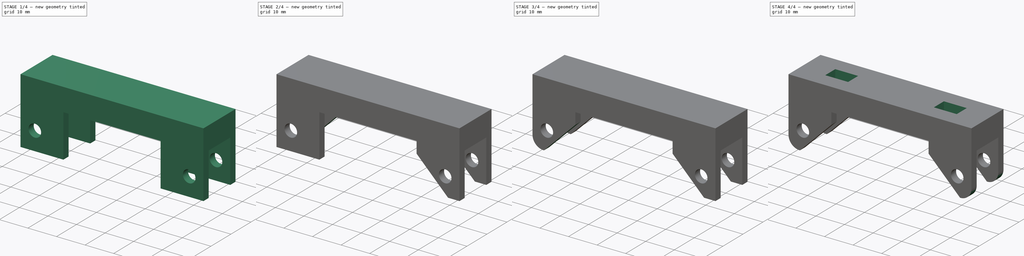
[diagram: build sequence overview — one tinted view per stage of 4, left to right]
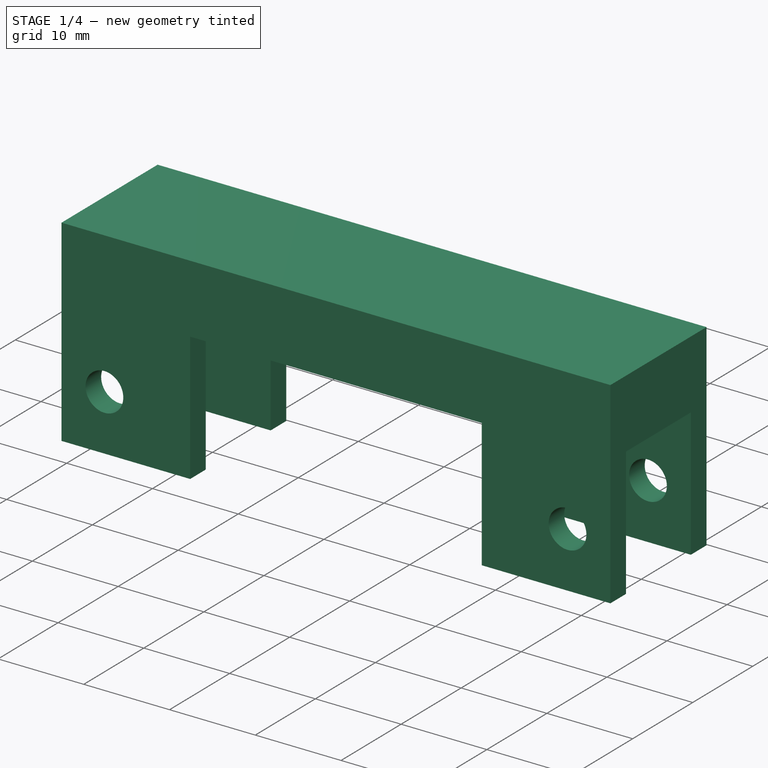
[diagram: stage 1 of 4 — iso view after this stage's code; geometry added in this stage tinted green]
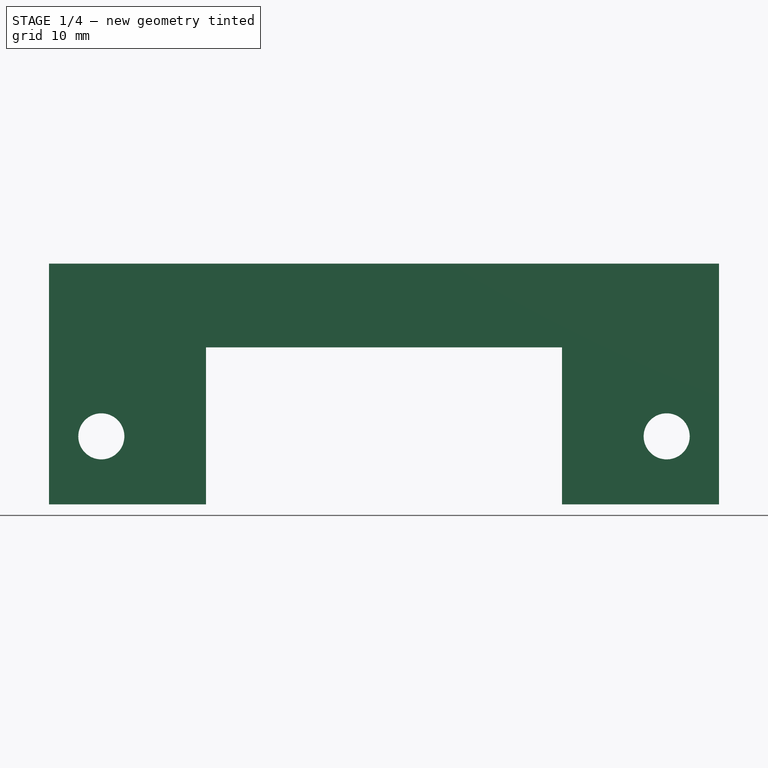
[diagram: stage 1 of 4 — front view after this stage's code; geometry added in this stage tinted green]
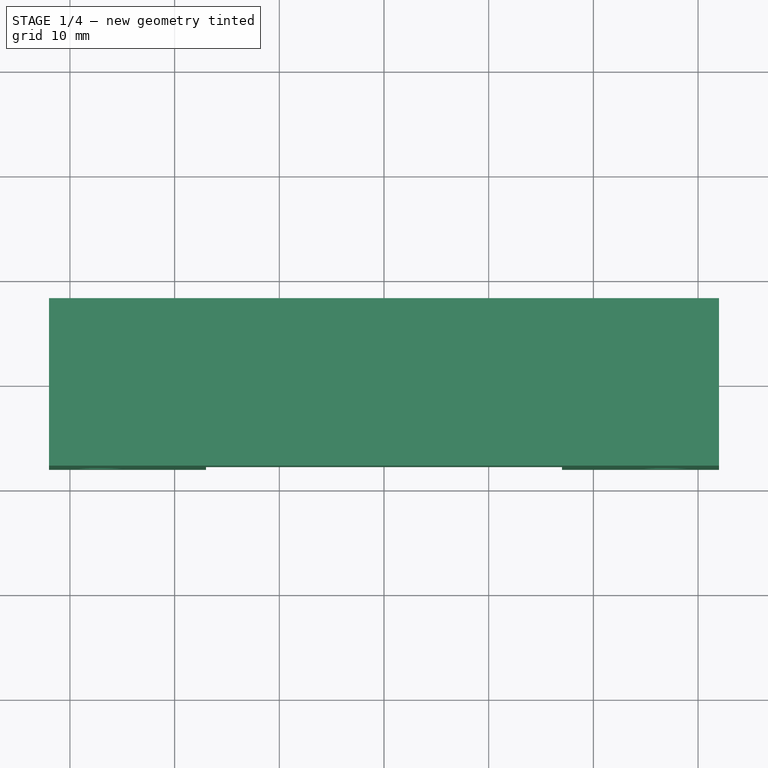
[diagram: stage 1 of 4 — top view after this stage's code; geometry added in this stage tinted green]
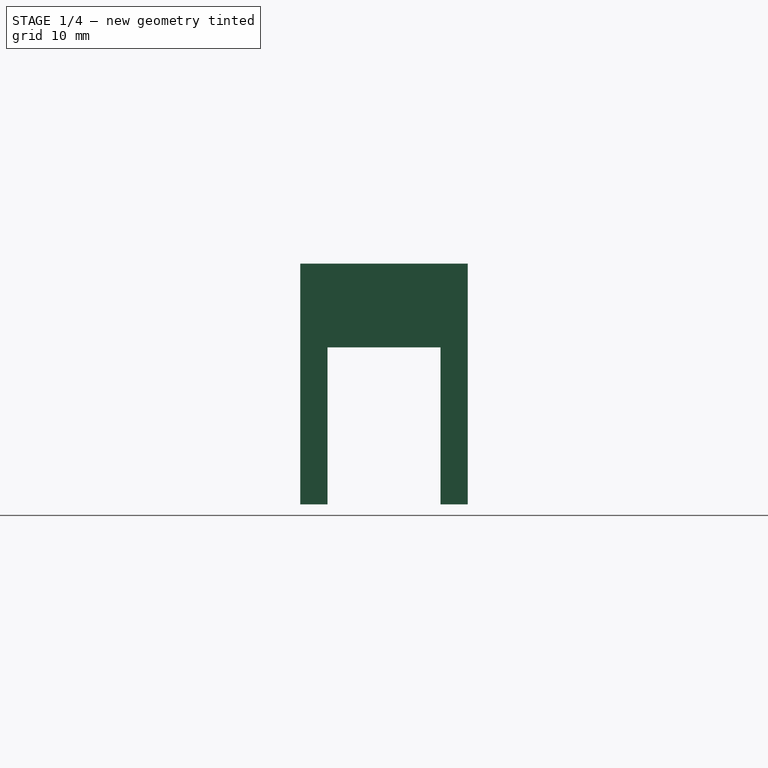
[diagram: stage 1 of 4 — right view after this stage's code; geometry added in this stage tinted green]
FCSTD DOCUMENT  (FreeCAD 0.18R16117 (Git))
Label: TCM2 - ESPSupporto
License: All rights reserved
LicenseURL: http://en.wikipedia.org/wiki/All_rights_reserved
objects: Sketcher::SketchObject×5, PartDesign::Chamfer×4, PartDesign::Fillet×4, PartDesign::Pad×2, PartDesign::Pocket×2, PartDesign::Body×1
note: 22 computed .brp shape members not serialized (recipe doc carries the construction recipe); baked Part::Feature solids carry a one-line shape summary decoded from their .brp

FEATURE [Sketcher::SketchObject] Sketch
  MapMode = 5
  Support = -> [XY_Plane]
  sketch-geometry (4):
    g0: LineSegment StartX=-32 StartY=8 StartZ=0 EndX=32 EndY=8 EndZ=0
    g1: LineSegment StartX=32 StartY=8 StartZ=0 EndX=32 EndY=-8 EndZ=0
    g2: LineSegment StartX=32 StartY=-8 StartZ=0 EndX=-32 EndY=-8 EndZ=0
    g3: LineSegment StartX=-32 StartY=-8 StartZ=0 EndX=-32 EndY=8 EndZ=0
  constraints (12):
    c: Coincident(g0,g1)
    c: Coincident(g1,g2)
    c: Coincident(g2,g3)
    c: Coincident(g3,g0)
    c: Horizontal(g0)
    c: Horizontal(g2)
    c: Vertical(g1)
    c: Vertical(g3)
    c: Distance(g0) = 64
    c: DistanceX(g0,g-1) = 32
    c: Distance(g1) = 16
    c: DistanceY(g-1,g0) = 8
FEATURE [PartDesign::Pad] Pad
  Length = 8
  Length2 = 100
  Profile = -> Sketch
  Type = 0
FEATURE [Sketcher::SketchObject] Sketch001
  MapMode = 5
  Placement = pos=(0,0,0) rot=(1,0,0;3.14159rad)
  Support = -> [Pad]
  sketch-geometry (16):
    g0: LineSegment StartX=-32 StartY=8 StartZ=0 EndX=-17 EndY=8 EndZ=0
    g1: LineSegment StartX=-17 StartY=8 StartZ=0 EndX=-17 EndY=5.4 EndZ=0
    g2: LineSegment StartX=-17 StartY=5.4 StartZ=0 EndX=-32 EndY=5.4 EndZ=0
    g3: LineSegment StartX=-32 StartY=5.4 StartZ=0 EndX=-32 EndY=8 EndZ=0
    g4: LineSegment StartX=-32 StartY=-5.4 StartZ=0 EndX=-17 EndY=-5.4 EndZ=0
    g5: LineSegment StartX=-17 StartY=-5.4 StartZ=0 EndX=-17 EndY=-8 EndZ=0
    g6: LineSegment StartX=-17 StartY=-8 StartZ=0 EndX=-32 EndY=-8 EndZ=0
    g7: LineSegment StartX=-32 StartY=-8 StartZ=0 EndX=-32 EndY=-5.4 EndZ=0
    g8: LineSegment StartX=17 StartY=8 StartZ=0 EndX=32 EndY=8 EndZ=0
    g9: LineSegment StartX=32 StartY=8 StartZ=0 EndX=32 EndY=5.4 EndZ=0
    g10: LineSegment StartX=32 StartY=5.4 StartZ=0 EndX=17 EndY=5.4 EndZ=0
    g11: LineSegment StartX=17 StartY=5.4 StartZ=0 EndX=17 EndY=8 EndZ=0
    g12: LineSegment StartX=17 StartY=-5.4 StartZ=0 EndX=32 EndY=-5.4 EndZ=0
    g13: LineSegment StartX=32 StartY=-5.4 StartZ=0 EndX=32 EndY=-8 EndZ=0
    g14: LineSegment StartX=32 StartY=-8 StartZ=0 EndX=17 EndY=-8 EndZ=0
    g15: LineSegment StartX=17 StartY=-8 StartZ=0 EndX=17 EndY=-5.4 EndZ=0
  constraints (48):
    c: Coincident(g0,g1)
    c: Coincident(g1,g2)
    c: Coincident(g2,g3)
    c: Coincident(g3,g0)
    c: Horizontal(g0)
    c: Horizontal(g2)
    c: Vertical(g1)
    c: Vertical(g3)
    c: Coincident(g4,g5)
    c: Coincident(g5,g6)
    c: Coincident(g6,g7)
    c: Coincident(g7,g4)
    c: Horizontal(g4)
    c: Horizontal(g6)
    c: Vertical(g5)
    c: Vertical(g7)
    c: Coincident(g8,g9)
    c: Coincident(g9,g10)
    c: Coincident(g10,g11)
    c: Coincident(g11,g8)
    c: Horizontal(g8)
    c: Horizontal(g10)
    c: Vertical(g9)
    c: Vertical(g11)
    c: Coincident(g12,g13)
    c: Coincident(g13,g14)
    c: Coincident(g14,g15)
    c: Coincident(g15,g12)
    c: Horizontal(g12)
    c: Horizontal(g14)
    c: Vertical(g13)
    c: Vertical(g15)
    c: Distance(g8) = 15
    c: Distance(g12) = 15
    c: Distance(g0) = 15
    c: Distance(g4) = 15
    c: DistanceX(g4,g-1) = 32
    c: DistanceY(g6,g-1) = 8
    c: DistanceY(g-1,g0) = 8
    c: DistanceX(g0,g-1) = 32
    c: DistanceX(g-1,g8) = 32
    c: DistanceY(g-1,g8) = 8
    c: DistanceX(g-1,g13) = 32
    c: DistanceY(g13,g-1) = 8
    c: Distance(g9) = 2.6
    c: Distance(g13) = 2.6
    c: Distance(g1) = 2.6
    c: Distance(g5) = 2.6
FEATURE [PartDesign::Pad] Pad001
  BaseFeature = -> Pad
  Length = 15
  Length2 = 100
  Profile = -> Sketch001
  Type = 0
FEATURE [Sketcher::SketchObject] Sketch002
  MapMode = 5
  Placement = pos=(0,8,0) rot=(0,0.707107,0.707107;3.14159rad)
  Support = -> [Pad001]
  sketch-geometry (2):
    g0: Circle CenterX=-27 CenterY=-8.5 CenterZ=0 NormalX=0 NormalY=0 NormalZ=1 AngleXU=0 Radius=2.2
    g1: Circle CenterX=27 CenterY=-8.5 CenterZ=0 NormalX=0 NormalY=0 NormalZ=1 AngleXU=0 Radius=2.2
  constraints (6):
    c: Radius(g0) = 2.2
    c: DistanceX(g0,g-1) = 27
    c: DistanceY(g0,g-1) = 8.5
    c: Radius(g1) = 2.2
    c: DistanceX(g-1,g1) = 27
    c: DistanceY(g1,g-1) = 8.5
FEATURE [PartDesign::Pocket] Pocket
  BaseFeature = -> Pad001
  Length = 16
  Length2 = 100
  Profile = -> Sketch002
  Type = 0
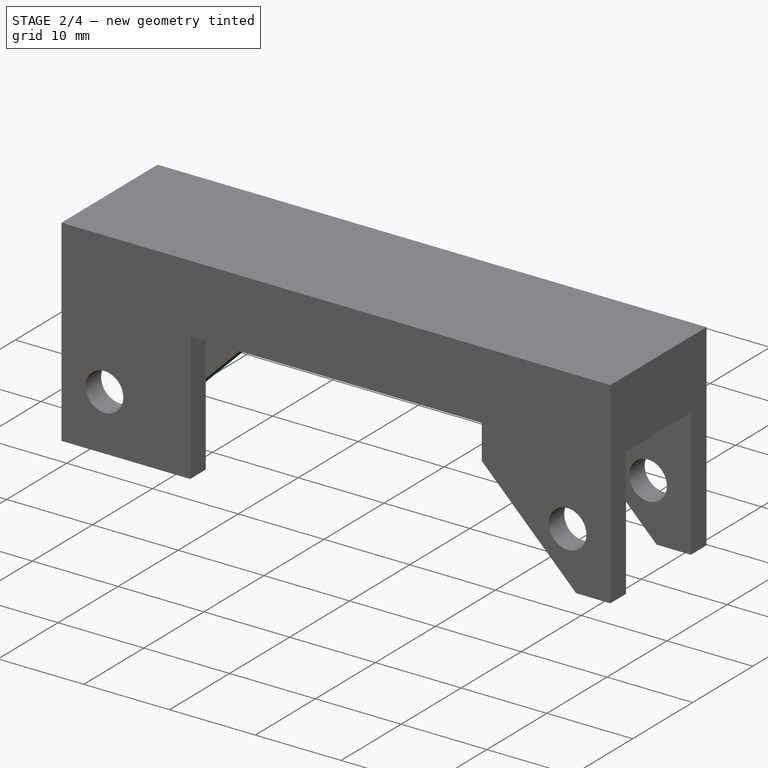
[diagram: stage 2 of 4 — iso view after this stage's code; geometry added in this stage tinted green]
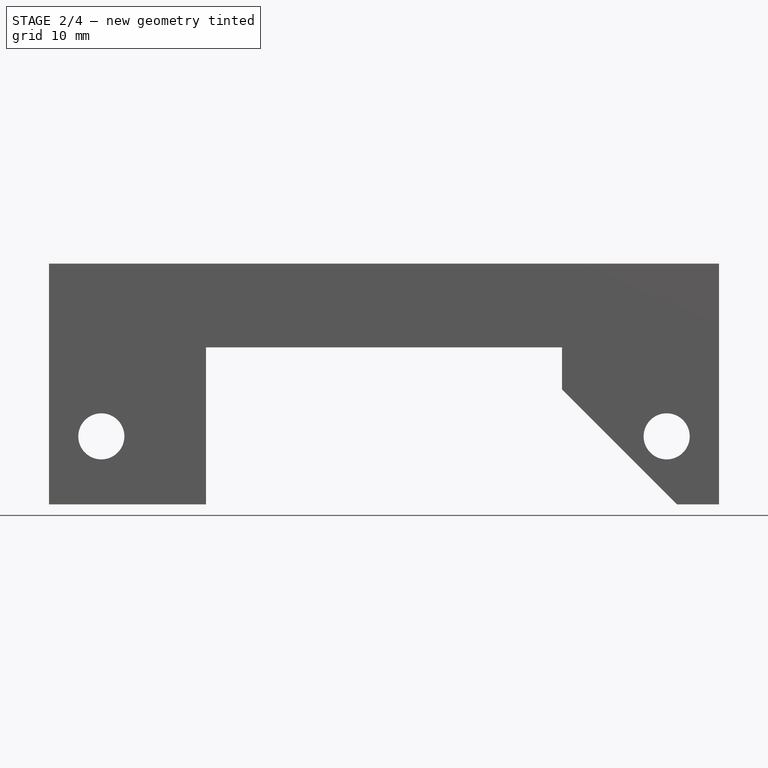
[diagram: stage 2 of 4 — front view after this stage's code; geometry added in this stage tinted green]
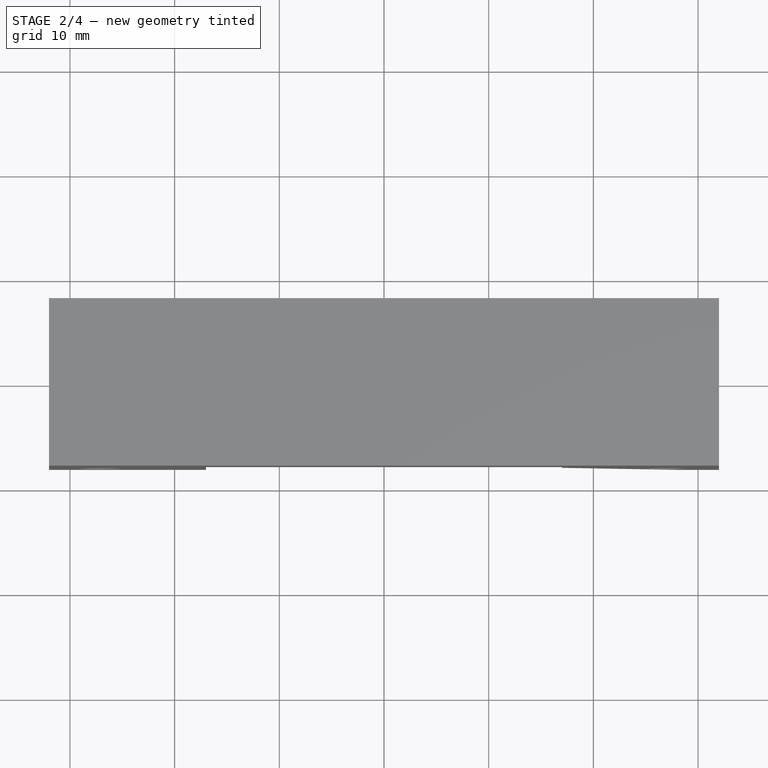
[diagram: stage 2 of 4 — top view after this stage's code; geometry added in this stage tinted green]
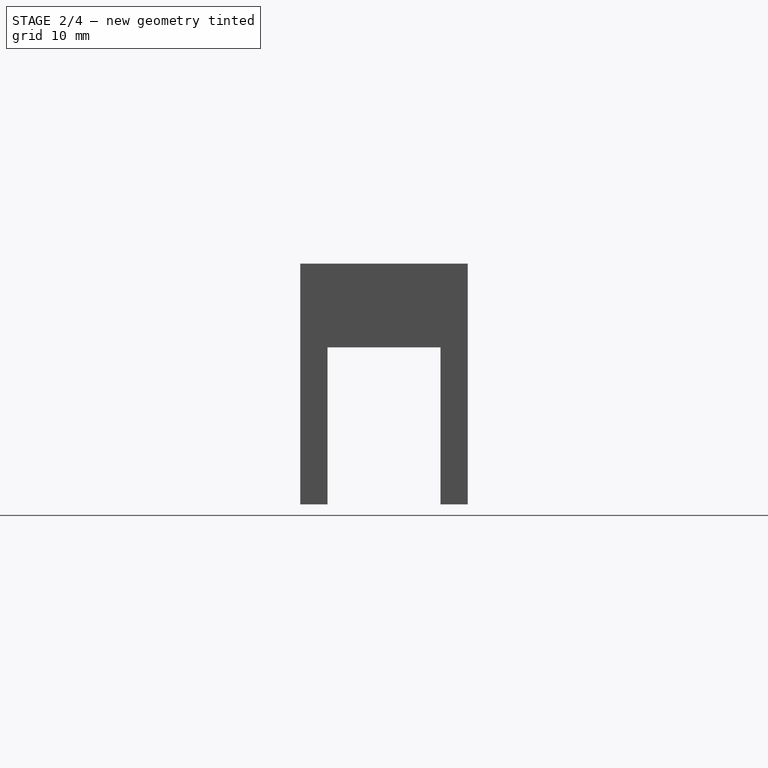
[diagram: stage 2 of 4 — right view after this stage's code; geometry added in this stage tinted green]
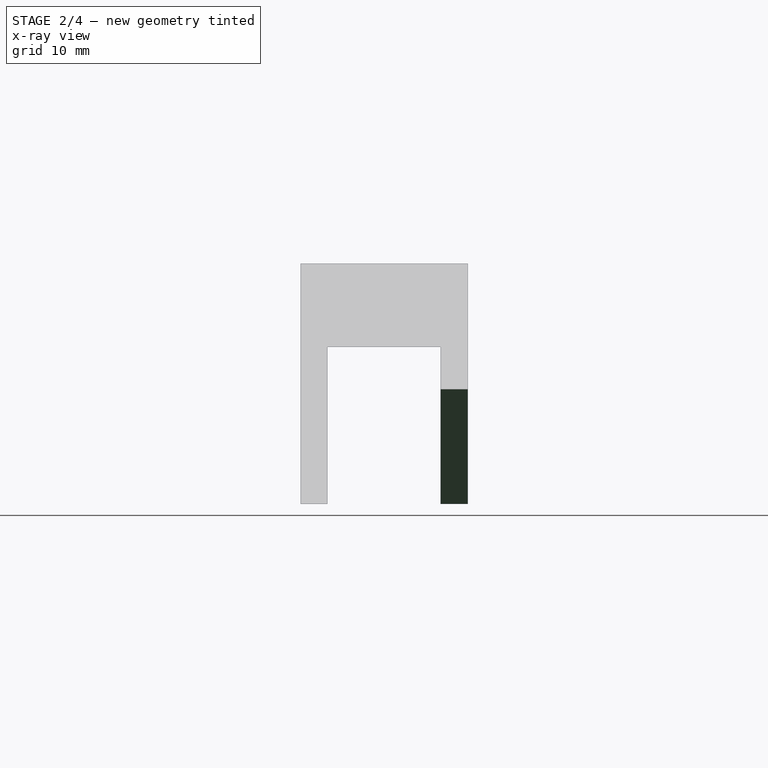
[diagram: stage 2 of 4 — x-ray composite at the right view; earlier geometry ghosted, this stage's added geometry solid]
FEATURE [PartDesign::Chamfer] Chamfer
  Base = -> Pocket [Edge65]
  BaseFeature = -> Pocket
  Size = 11
FEATURE [PartDesign::Chamfer] Chamfer001
  Base = -> Chamfer [Edge63]
  BaseFeature = -> Chamfer
  Size = 11
FEATURE [PartDesign::Chamfer] Chamfer002
  Base = -> Chamfer001 [Edge31]
  BaseFeature = -> Chamfer001
  Size = 11
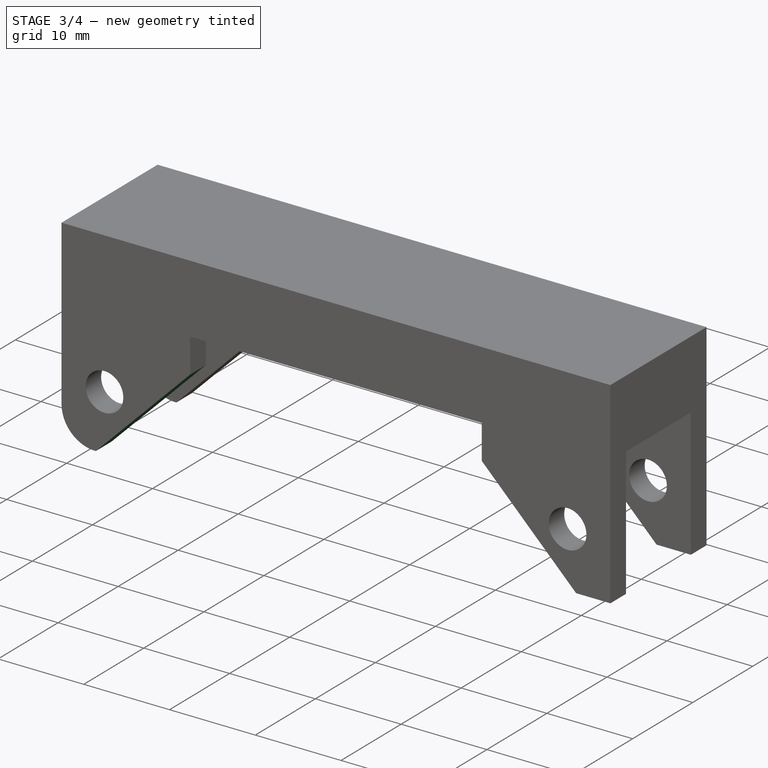
[diagram: stage 3 of 4 — iso view after this stage's code; geometry added in this stage tinted green]
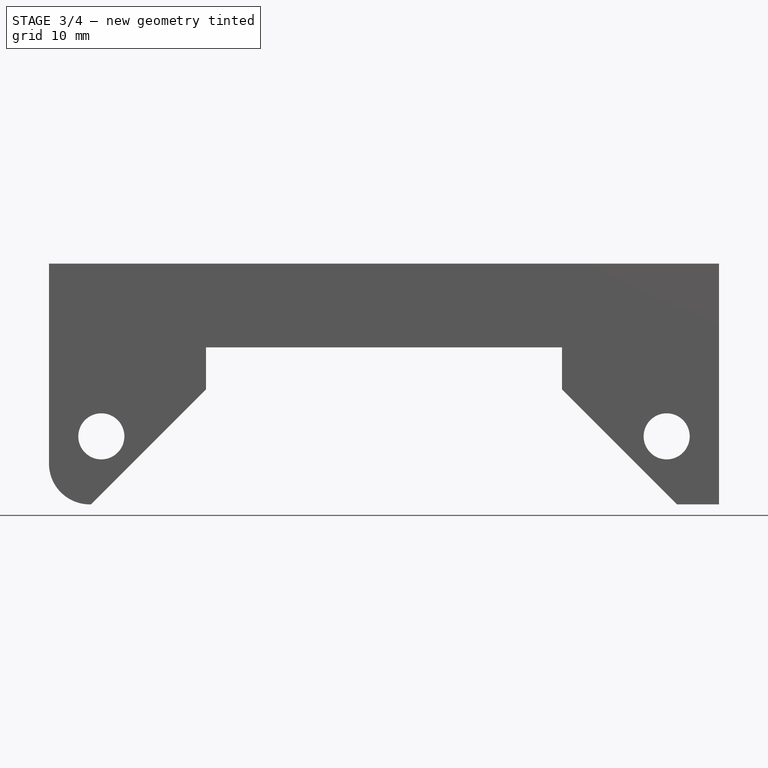
[diagram: stage 3 of 4 — front view after this stage's code; geometry added in this stage tinted green]
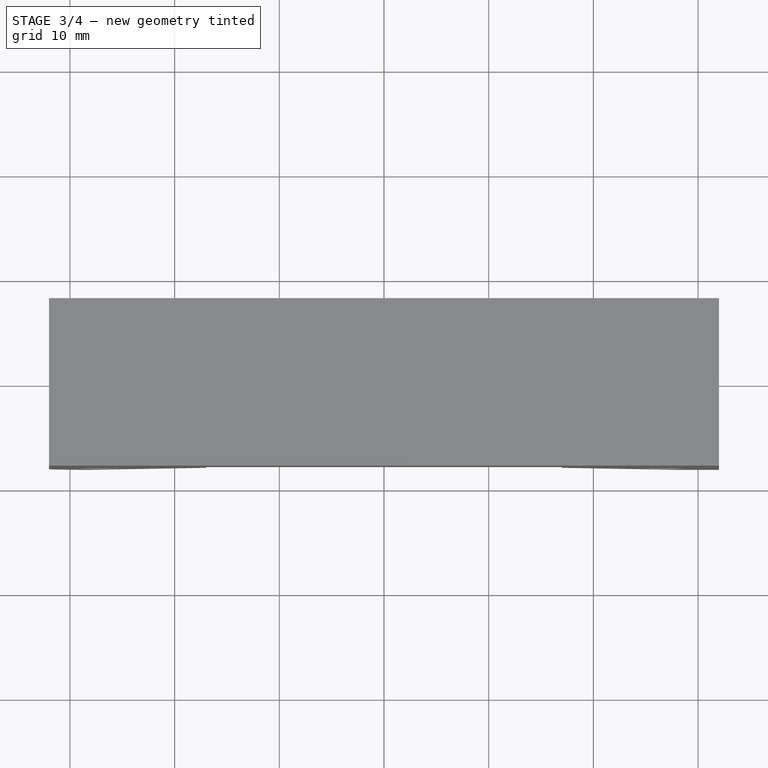
[diagram: stage 3 of 4 — top view after this stage's code; geometry added in this stage tinted green]
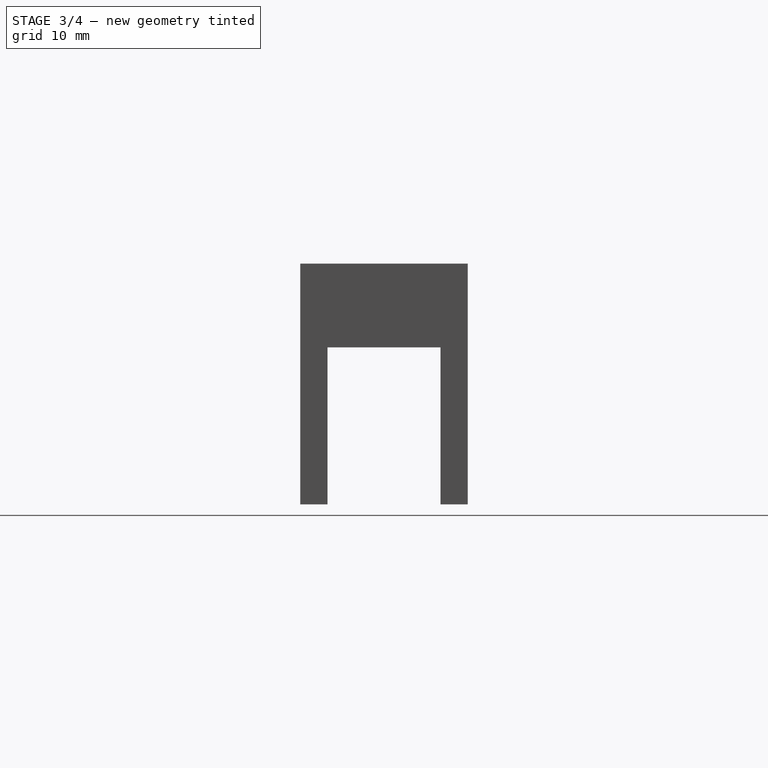
[diagram: stage 3 of 4 — right view after this stage's code; geometry added in this stage tinted green]
FEATURE [PartDesign::Chamfer] Chamfer003
  Base = -> Chamfer002 [Edge38]
  BaseFeature = -> Chamfer002
  Size = 11
FEATURE [PartDesign::Fillet] Fillet
  Base = -> Chamfer003 [Edge69]
  BaseFeature = -> Chamfer003
  Radius = 3.9
FEATURE [PartDesign::Fillet] Fillet001
  Base = -> Fillet [Edge68]
  BaseFeature = -> Fillet
  Radius = 3.9
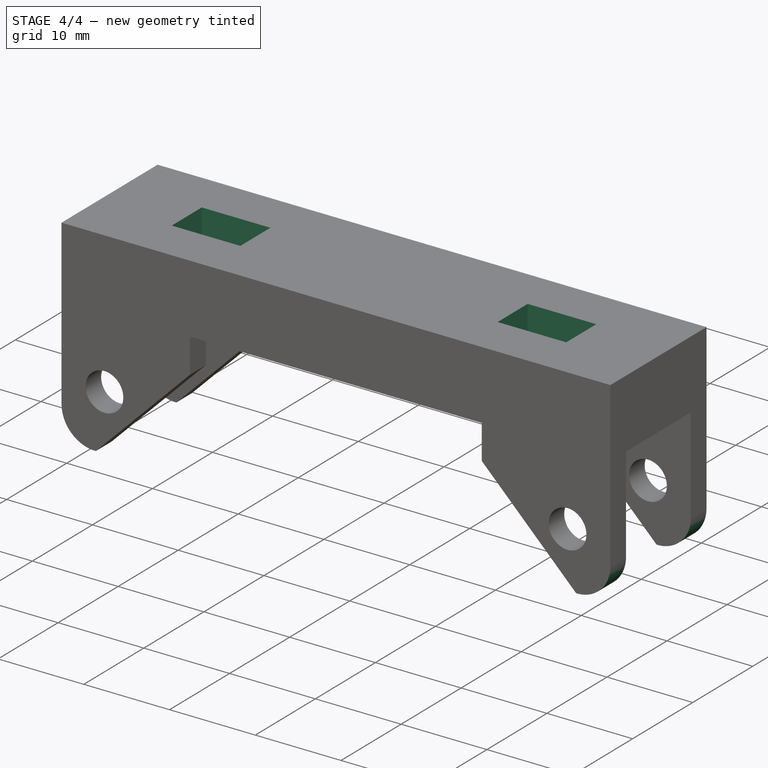
[diagram: stage 4 of 4 — iso view after this stage's code; geometry added in this stage tinted green]
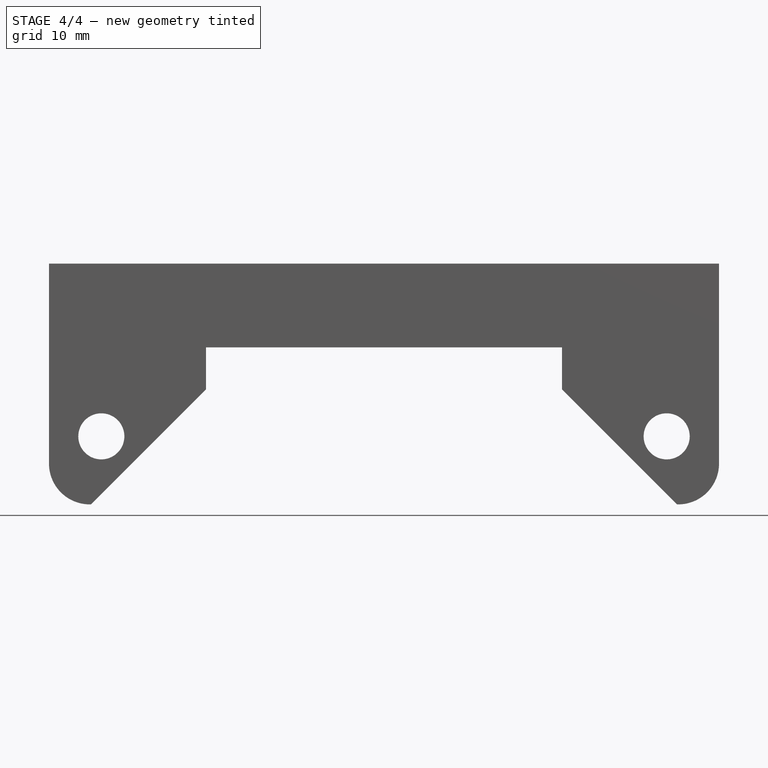
[diagram: stage 4 of 4 — front view after this stage's code; geometry added in this stage tinted green]
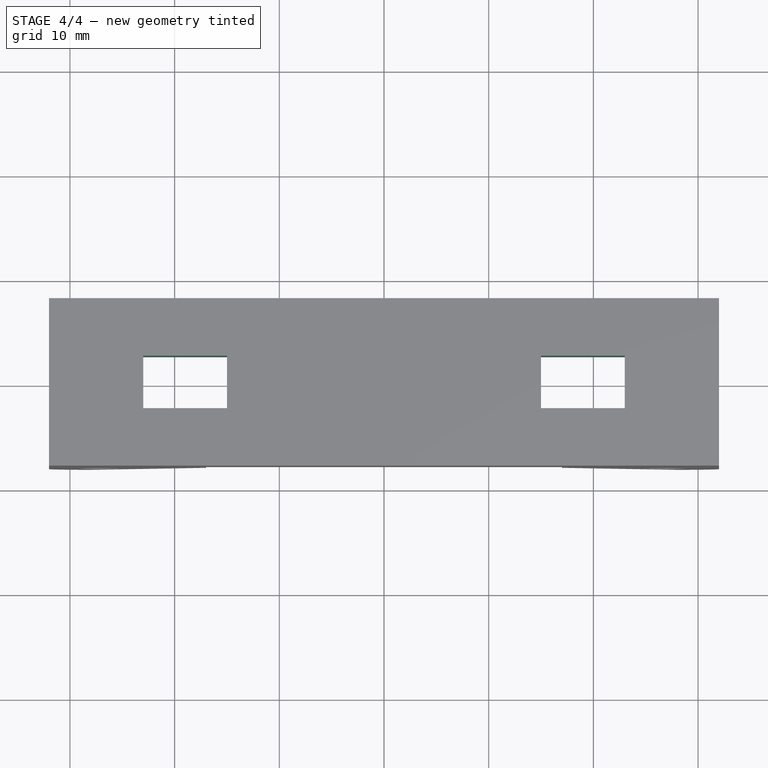
[diagram: stage 4 of 4 — top view after this stage's code; geometry added in this stage tinted green]
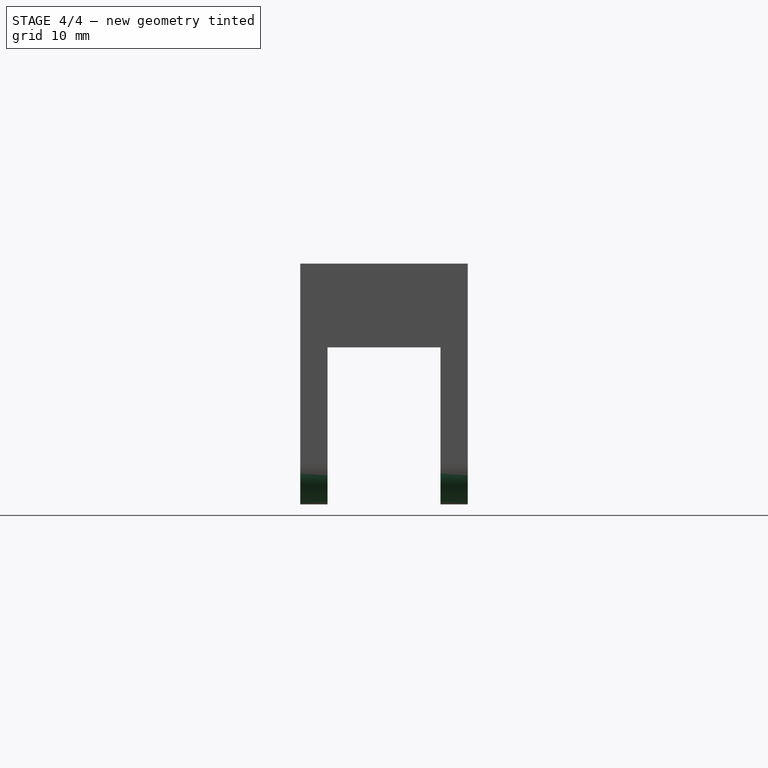
[diagram: stage 4 of 4 — right view after this stage's code; geometry added in this stage tinted green]
FEATURE [PartDesign::Fillet] Fillet002
  Base = -> Fillet001 [Edge82]
  BaseFeature = -> Fillet001
  Radius = 3.9
FEATURE [PartDesign::Fillet] Fillet003
  Base = -> Fillet002 [Edge70]
  BaseFeature = -> Fillet002
  Radius = 3.9
FEATURE [Sketcher::SketchObject] Sketch003
  MapMode = 5
  Placement = pos=(0,0,8) rot=(0,0,1;0rad)
  Support = -> [Fillet003]
FEATURE [Sketcher::SketchObject] Sketch004
  MapMode = 5
  Placement = pos=(0,0,8) rot=(0,0,1;0rad)
  Support = -> [Fillet003]
  sketch-geometry (8):
    g0: LineSegment StartX=-23 StartY=2.5 StartZ=0 EndX=-15 EndY=2.5 EndZ=0
    g1: LineSegment StartX=-15 StartY=2.5 StartZ=0 EndX=-15 EndY=-2.5 EndZ=0
    g2: LineSegment StartX=-15 StartY=-2.5 StartZ=0 EndX=-23 EndY=-2.5 EndZ=0
    g3: LineSegment StartX=-23 StartY=-2.5 StartZ=0 EndX=-23 EndY=2.5 EndZ=0
    g4: LineSegment StartX=15 StartY=2.5 StartZ=0 EndX=23 EndY=2.5 EndZ=0
    g5: LineSegment StartX=23 StartY=2.5 StartZ=0 EndX=23 EndY=-2.5 EndZ=0
    g6: LineSegment StartX=23 StartY=-2.5 StartZ=0 EndX=15 EndY=-2.5 EndZ=0
    g7: LineSegment StartX=15 StartY=-2.5 StartZ=0 EndX=15 EndY=2.5 EndZ=0
  constraints (24):
    c: Coincident(g0,g1)
    c: Coincident(g1,g2)
    c: Coincident(g2,g3)
    c: Coincident(g3,g0)
    c: Horizontal(g0)
    c: Horizontal(g2)
    c: Vertical(g1)
    c: Vertical(g3)
    c: Coincident(g4,g5)
    c: Coincident(g5,g6)
    c: Coincident(g6,g7)
    c: Coincident(g7,g4)
    c: Horizontal(g4)
    c: Horizontal(g6)
    c: Vertical(g5)
    c: Vertical(g7)
    c: Distance(g5) = 5
    c: Distance(g4) = 8
    c: Distance(g1) = 5
    c: Distance(g0) = 8
    c: DistanceX(g1,g-1) = 15
    c: DistanceX(g-1,g6) = 15
    c: DistanceY(g-1,g0) = 2.5
    c: DistanceY(g-1,g4) = 2.5
FEATURE [PartDesign::Pocket] Pocket001
  BaseFeature = -> Fillet003
  Length = 8
  Length2 = 100
  Profile = -> Sketch004
  Type = 0
FEATURE [PartDesign::Body] Body
  Group = -> [Sketch,Pad,Sketch001,Pad001,Sketch002,Pocket,Chamfer,Chamfer001,Chamfer002,Chamfer003,Fillet,Fillet001,Fillet002,Fillet003,Sketch003,Sketch004,Pocket001]
  Origin = -> Origin
  Tip = -> Pocket001
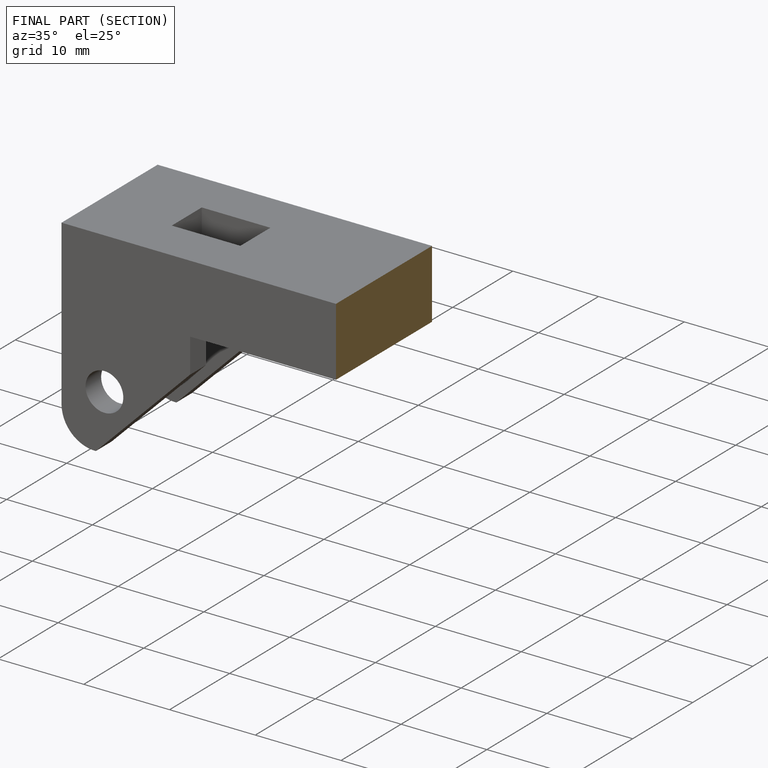
[diagram: finished part — half-section view (interior)]
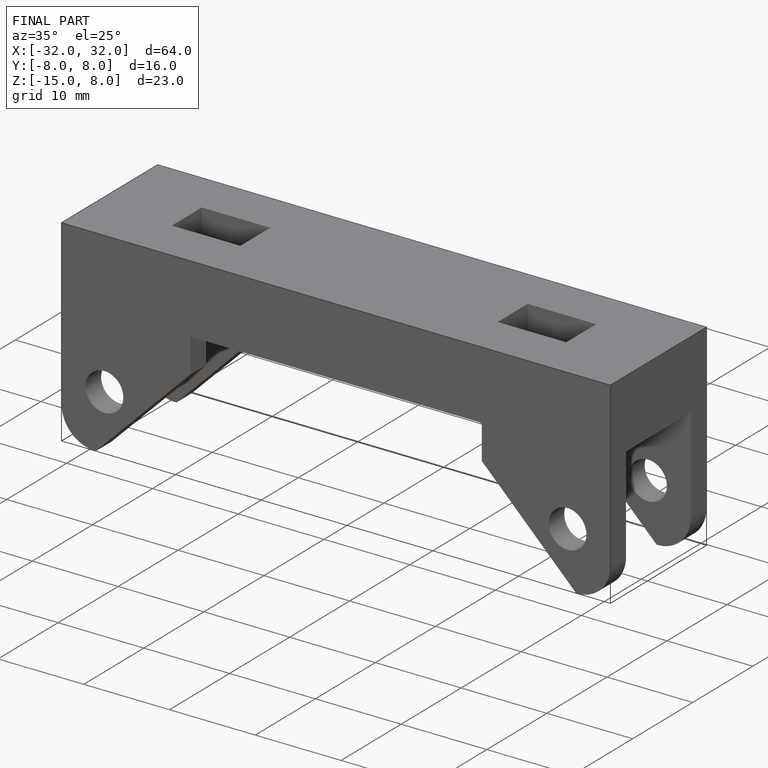
[diagram: finished part — iso view with bounding-box wireframe]
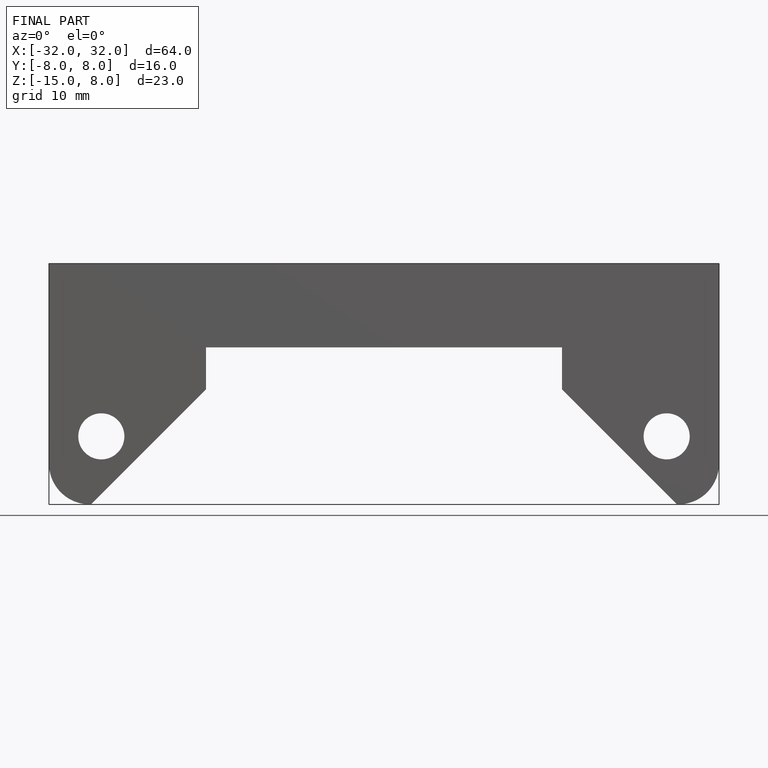
[diagram: finished part — front view with bounding-box wireframe]
